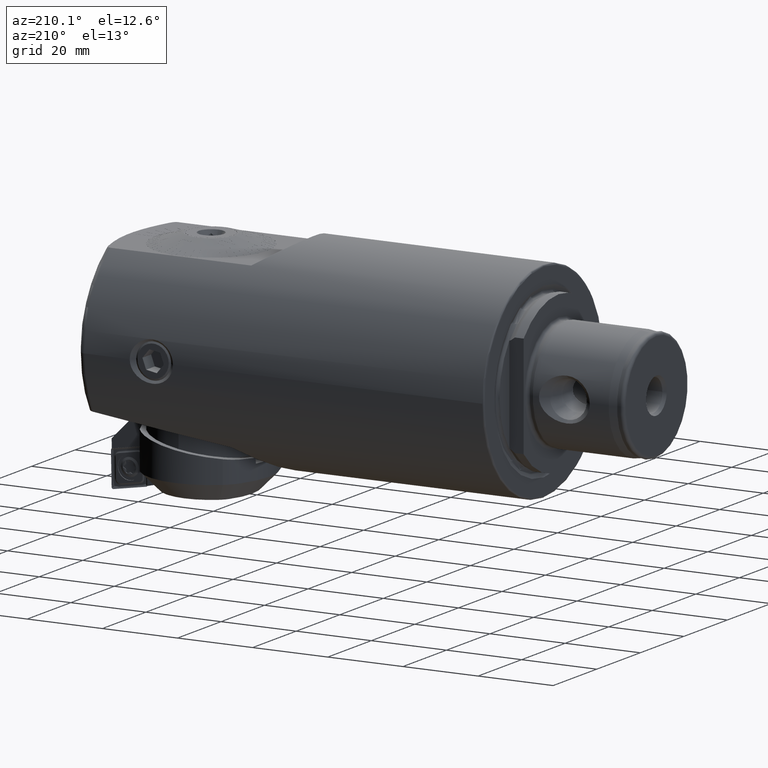
[diagram: clean part render]
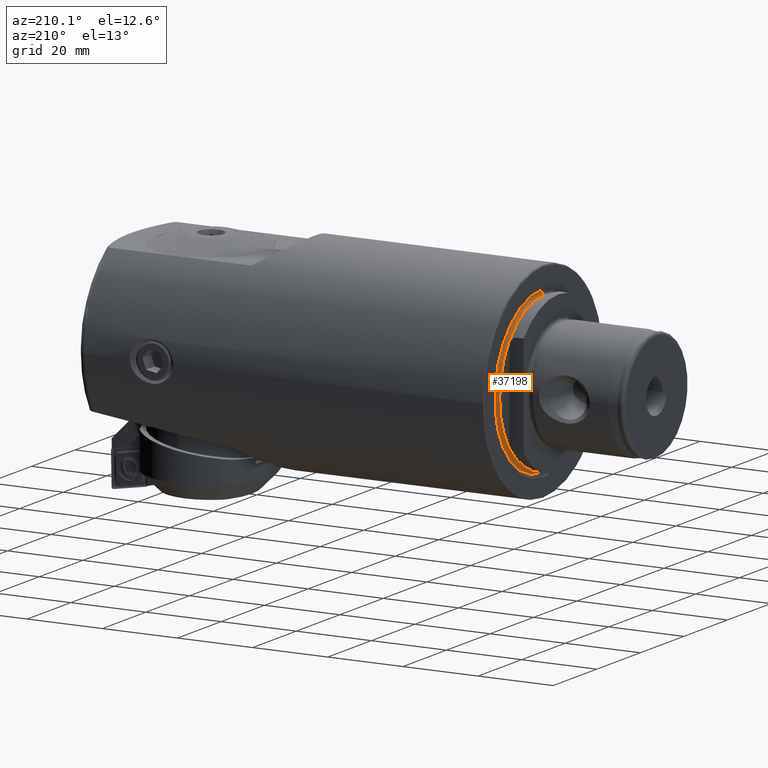
[diagram: same view with one face highlighted and labeled with its STEP entity id]
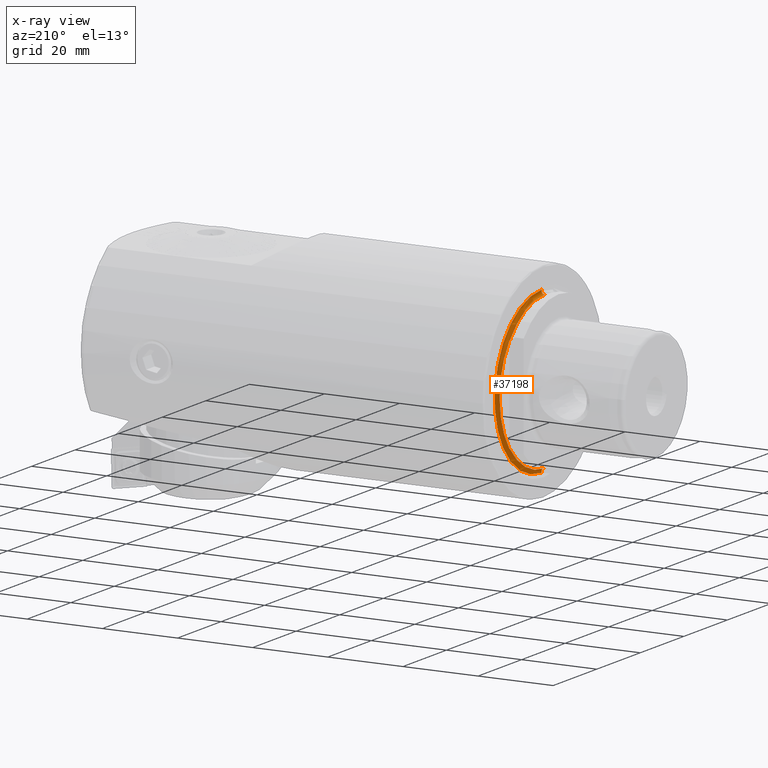
[diagram: x-ray of the same camera — body ghosted, the highlighted face saturated]
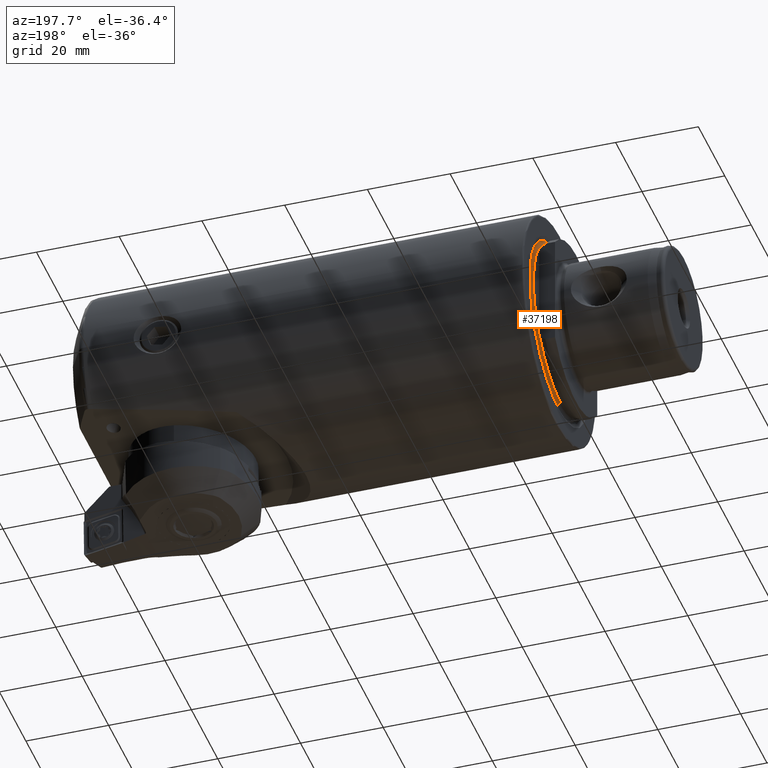
[diagram: same view with one face highlighted and labeled with its STEP entity id]
A machine part, auxiliary view. The second image highlights one B-rep face of the part: STEP entity #37198.
The next image is the same camera in x-ray: the body ghosted, the highlighted face saturated — about 0% of this face is hidden behind the body in this view.
A second angle (auxiliary view) of the same face is appended — the face is thin or edge-on in the first view.
In plain terms, the highlighted toroidal blend (fillet) surface has major radius 21.275 mm and minor (blend) radius 0.8 mm.
Its self-contained STEP definition (entity closure, byte-faithful):
#32 = VERTEX_POINT ( 'NONE', #26941 ) ;
#142 = CARTESIAN_POINT ( 'NONE',  ( -0.2332827060808118600, 16.00000000000000000, -12.77597843611205900 ) ) ;
#363 = EDGE_CURVE ( 'NONE', #19275, #19787, #26140, .T. ) ;
#623 = CARTESIAN_POINT ( 'NONE',  ( -0.1499999999999973600, 16.00000000000000000, 12.78603181265636100 ) ) ;
#696 = AXIS2_PLACEMENT_3D ( 'NONE', #27520, #9541, #30564 ) ;
#1048 = AXIS2_PLACEMENT_3D ( 'NONE', #21338, #21211, #21093 ) ;
#1191 = EDGE_CURVE ( 'NONE', #28380, #7985, #8246, .T. ) ;
#2076 = DIRECTION ( 'NONE',  ( -1.000000000000000000, -0.0000000000000000000, -0.0000000000000000000 ) ) ;
#2889 = DIRECTION ( 'NONE',  ( -0.0000000000000000000, 1.000000000000000000, 1.224646799147353200E-016 ) ) ;
#3458 = CARTESIAN_POINT ( 'NONE',  ( -0.2500000000000310900, 16.00000000000000000, -12.77597843611191000 ) ) ;
#3571 = CARTESIAN_POINT ( 'NONE',  ( 0.4750462296293223600, 0.0000000000000000000, 21.61309460939256500 ) ) ;
#4011 = AXIS2_PLACEMENT_3D ( 'NONE', #34966, #2076, #23012 ) ;
#4116 = CARTESIAN_POINT ( 'NONE',  ( -0.1499999999999973600, 0.0000000000000000000, 0.0000000000000000000 ) ) ;
#4501 = ORIENTED_EDGE ( 'NONE', *, *, #8650, .T. ) ;
#5155 = VERTEX_POINT ( 'NONE', #24685 ) ;
#6629 = B_SPLINE_CURVE_WITH_KNOTS ( 'NONE', 3,
 ( #15095, #33040, #36081, #18074, #142, #21108 ),
 .UNSPECIFIED., .F., .F.,
 ( 4, 2, 4 ),
 ( 0.003354170816212953600, 0.003404154261752266100, 0.003454137707291578100 ),
 .UNSPECIFIED. ) ;
#7135 = DIRECTION ( 'NONE',  ( 0.0000000000000000000, 3.552713678800500900E-015, 1.000000000000000000 ) ) ;
#7361 = ORIENTED_EDGE ( 'NONE', *, *, #21199, .F. ) ;
#7817 = DIRECTION ( 'NONE',  ( -1.000000000000000000, -0.0000000000000000000, -0.0000000000000000000 ) ) ;
#7860 = DIRECTION ( 'NONE',  ( 0.0000000000000000000, 0.0000000000000000000, 1.000000000000000000 ) ) ;
#7958 = CARTESIAN_POINT ( 'NONE',  ( -0.2500000000000001100, 0.0000000000000000000, 0.0000000000000000000 ) ) ;
#7985 = VERTEX_POINT ( 'NONE', #3571 ) ;
#8195 = ORIENTED_EDGE ( 'NONE', *, *, #363, .F. ) ;
#8246 = CIRCLE ( 'NONE', #1048, 0.8000000000000020400 ) ;
#8650 = EDGE_CURVE ( 'NONE', #7985, #32, #22839, .T. ) ;
#9541 = DIRECTION ( 'NONE',  ( -1.000000000000000000, -0.0000000000000000000, -0.0000000000000000000 ) ) ;
#10517 = ORIENTED_EDGE ( 'NONE', *, *, #22091, .F. ) ;
#11370 = AXIS2_PLACEMENT_3D ( 'NONE', #20827, #2889, #23834 ) ;
#12560 = CIRCLE ( 'NONE', #20683, 20.47500000000000100 ) ;
#12565 = FACE_OUTER_BOUND ( 'NONE', #26401, .T. ) ;
#12709 = ORIENTED_EDGE ( 'NONE', *, *, #30301, .T. ) ;
#13539 = TOROIDAL_SURFACE ( 'NONE', #4011, 21.27500000000000200, 0.8000000000000030400 ) ;
#14072 = AXIS2_PLACEMENT_3D ( 'NONE', #7958, #7817, #7860 ) ;
#14282 = VERTEX_POINT ( 'NONE', #34042 ) ;
#14376 = EDGE_CURVE ( 'NONE', #28380, #14282, #12560, .T. ) ;
#15095 = CARTESIAN_POINT ( 'NONE',  ( -0.1499999999999973600, 16.00000000000000000, -12.78603181265636100 ) ) ;
#16001 = CARTESIAN_POINT ( 'NONE',  ( -0.2500000000000001100, 2.507464321254205600E-015, -20.47500000000000100 ) ) ;
#16708 = DIRECTION ( 'NONE',  ( -1.000000000000000000, -0.0000000000000000000, -0.0000000000000000000 ) ) ;
#18074 = CARTESIAN_POINT ( 'NONE',  ( -0.2163933298203864800, 16.00000000000000000, -12.77682779062049300 ) ) ;
#18562 = CARTESIAN_POINT ( 'NONE',  ( -0.1665304463499316400, 16.00000000000000400, 12.78269573996200000 ) ) ;
#19275 = VERTEX_POINT ( 'NONE', #3458 ) ;
#19787 = VERTEX_POINT ( 'NONE', #16001 ) ;
#20683 = AXIS2_PLACEMENT_3D ( 'NONE', #34717, #16708, #37767 ) ;
#20827 = CARTESIAN_POINT ( 'NONE',  ( -0.2500000000000002200, 2.605436065185994400E-015, -21.27500000000000200 ) ) ;
#21093 = DIRECTION ( 'NONE',  ( 0.0000000000000000000, 0.0000000000000000000, -1.000000000000000000 ) ) ;
#21108 = CARTESIAN_POINT ( 'NONE',  ( -0.2500000000000310900, 16.00000000000000000, -12.77597843611191000 ) ) ;
#21199 = EDGE_CURVE ( 'NONE', #19787, #32, #33475, .T. ) ;
#21211 = DIRECTION ( 'NONE',  ( 0.0000000000000000000, -1.000000000000000000, 0.0000000000000000000 ) ) ;
#21338 = CARTESIAN_POINT ( 'NONE',  ( -0.2500000000000002200, 0.0000000000000000000, 21.27500000000000200 ) ) ;
#22091 = EDGE_CURVE ( 'NONE', #35643, #19275, #6629, .T. ) ;
#22839 = CIRCLE ( 'NONE', #696, 21.61309460939256500 ) ;
#23012 = DIRECTION ( 'NONE',  ( 0.0000000000000000000, 0.0000000000000000000, 1.000000000000000000 ) ) ;
#23507 = B_SPLINE_CURVE_WITH_KNOTS ( 'NONE', 3,
 ( #33524, #36427, #36569, #18562, #623 ),
 .UNSPECIFIED., .F., .F.,
 ( 4, 1, 4 ),
 ( 5.358781147299767100E-005, 0.0001038313963802619400, 0.0001540749812875262000 ),
 .UNSPECIFIED. ) ;
#23834 = DIRECTION ( 'NONE',  ( 0.0000000000000000000, -1.224646799147353200E-016, 1.000000000000000000 ) ) ;
#23935 = ORIENTED_EDGE ( 'NONE', *, *, #14376, .F. ) ;
#24685 = CARTESIAN_POINT ( 'NONE',  ( -0.1499999999999973600, 16.00000000000000000, 12.78603181265636100 ) ) ;
#25088 = DIRECTION ( 'NONE',  ( 1.000000000000000000, 0.0000000000000000000, 0.0000000000000000000 ) ) ;
#25622 = CIRCLE ( 'NONE', #27088, 20.48127460668062500 ) ;
#26140 = CIRCLE ( 'NONE', #14072, 20.47500000000000100 ) ;
#26401 = EDGE_LOOP ( 'NONE', ( #23935, #35428, #4501, #7361, #8195, #10517, #12709, #28979 ) ) ;
#26941 = CARTESIAN_POINT ( 'NONE',  ( 0.4750462296293223600, 2.646840713306151700E-015, -21.61309460939256500 ) ) ;
#27088 = AXIS2_PLACEMENT_3D ( 'NONE', #4116, #25088, #7135 ) ;
#27520 = CARTESIAN_POINT ( 'NONE',  ( 0.4750462296293223000, 0.0000000000000000000, 0.0000000000000000000 ) ) ;
#28380 = VERTEX_POINT ( 'NONE', #38764 ) ;
#28979 = ORIENTED_EDGE ( 'NONE', *, *, #29134, .F. ) ;
#29134 = EDGE_CURVE ( 'NONE', #14282, #5155, #23507, .T. ) ;
#30301 = EDGE_CURVE ( 'NONE', #35643, #5155, #25622, .T. ) ;
#30564 = DIRECTION ( 'NONE',  ( 0.0000000000000000000, 0.0000000000000000000, 1.000000000000000000 ) ) ;
#33040 = CARTESIAN_POINT ( 'NONE',  ( -0.1663447933650062700, 16.00000000000000000, -12.78273320730193800 ) ) ;
#33475 = CIRCLE ( 'NONE', #11370, 0.8000000000000020400 ) ;
#33524 = CARTESIAN_POINT ( 'NONE',  ( -0.2499999999996126200, 16.00000000000000000, 12.77597843610854500 ) ) ;
#33805 = CARTESIAN_POINT ( 'NONE',  ( -0.1499999999999973600, 16.00000000000000000, -12.78603181265636100 ) ) ;
#34042 = CARTESIAN_POINT ( 'NONE',  ( -0.2499999999996126200, 16.00000000000000000, 12.77597843610854500 ) ) ;
#34717 = CARTESIAN_POINT ( 'NONE',  ( -0.2500000000000001100, 0.0000000000000000000, 0.0000000000000000000 ) ) ;
#34966 = CARTESIAN_POINT ( 'NONE',  ( -0.2500000000000002200, 0.0000000000000000000, 0.0000000000000000000 ) ) ;
#35428 = ORIENTED_EDGE ( 'NONE', *, *, #1191, .T. ) ;
#35643 = VERTEX_POINT ( 'NONE', #33805 ) ;
#36081 = CARTESIAN_POINT ( 'NONE',  ( -0.1828877369843573400, 16.00000000000000000, -12.78021426343104000 ) ) ;
#36427 = CARTESIAN_POINT ( 'NONE',  ( -0.2331958781549397200, 15.99999999999999600, 12.77597843611217100 ) ) ;
#36569 = CARTESIAN_POINT ( 'NONE',  ( -0.1997267125726036600, 16.00000000000000000, 12.77767378219019700 ) ) ;
#37198 = ADVANCED_FACE ( 'NONE', ( #12565 ), #13539, .F. ) ;
#37767 = DIRECTION ( 'NONE',  ( 0.0000000000000000000, 0.0000000000000000000, 1.000000000000000000 ) ) ;
#38764 = CARTESIAN_POINT ( 'NONE',  ( -0.2500000000000001100, 0.0000000000000000000, 20.47500000000000100 ) ) ;